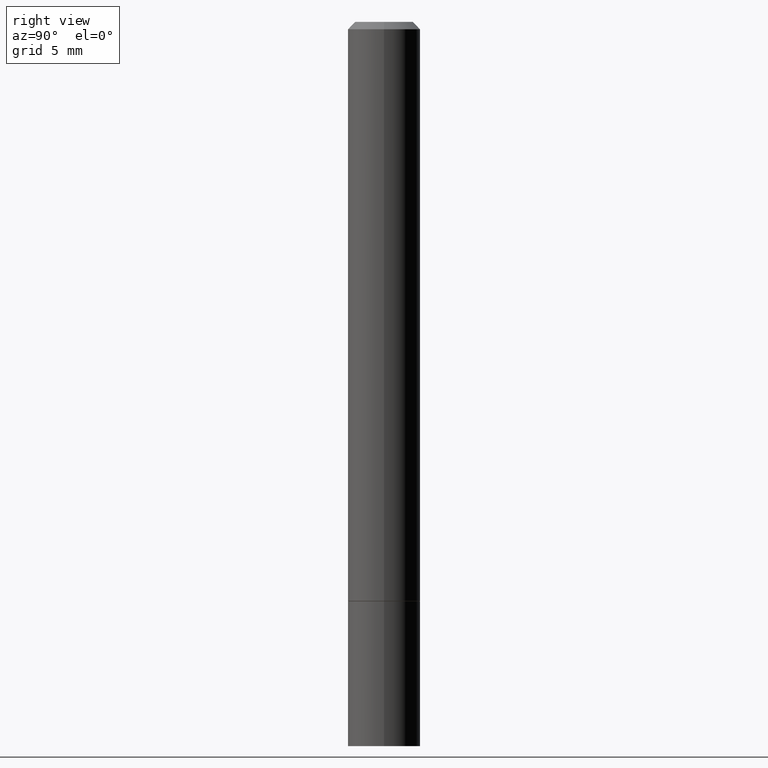
[diagram: clean part render]
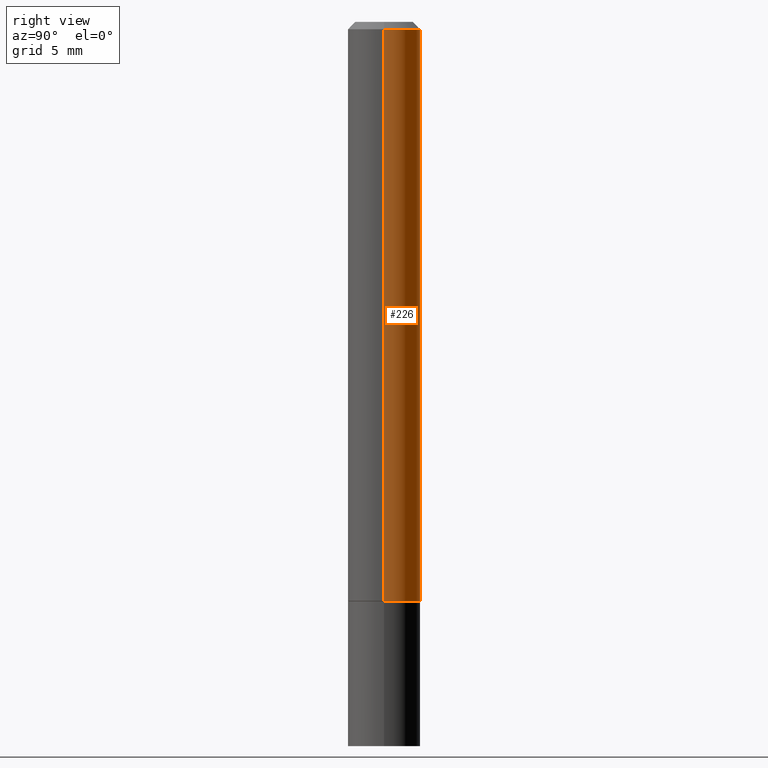
[diagram: same view with one face highlighted and labeled with its STEP entity id]
A machine part, right view. The second image highlights one B-rep face of the part: STEP entity #226.
In plain terms, the highlighted cylindrical surface (edge-blend (fillet) strip) has radius 2.5006 mm, axis along (-0, 0, 1).
Its self-contained STEP definition (entity closure, byte-faithful):
#7 = CARTESIAN_POINT ( 'NONE',  ( 0.09844999999999978768, -7.452456546574688288E-16, -0.02000000000000002123 ) ) ;
#30 = FACE_OUTER_BOUND ( 'NONE', #291, .T. ) ;
#32 = AXIS2_PLACEMENT_3D ( 'NONE', #59, #123, #67 ) ;
#34 = DIRECTION ( 'NONE',  ( -2.445468806185136877E-29, 3.491481338843145188E-15, 1.000000000000000000 ) ) ;
#41 = CIRCLE ( 'NONE', #78, 0.09844999999999978768 ) ;
#43 = DIRECTION ( 'NONE',  ( 1.000000000000000000, -6.982962677686266711E-15, 0.000000000000000000 ) ) ;
#54 = VERTEX_POINT ( 'NONE', #153 ) ;
#59 = CARTESIAN_POINT ( 'NONE',  ( 0.000000000000000000, 0.000000000000000000, 0.000000000000000000 ) ) ;
#66 = VECTOR ( 'NONE', #34, 39.37007874015748143 ) ;
#67 = DIRECTION ( 'NONE',  ( 1.000000000000000000, -6.982962677686266711E-15, 4.876176775795936353E-29 ) ) ;
#78 = AXIS2_PLACEMENT_3D ( 'NONE', #83, #303, #43 ) ;
#83 = CARTESIAN_POINT ( 'NONE',  ( 4.890937612370278413E-31, -6.982962677686297772E-17, -0.02000000000000002123 ) ) ;
#89 = ORIENTED_EDGE ( 'NONE', *, *, #152, .T. ) ;
#120 = LINE ( 'NONE', #208, #66 ) ;
#123 = DIRECTION ( 'NONE',  ( -2.445468806185136597E-29, 3.491481338843145583E-15, 1.000000000000000000 ) ) ;
#133 = CARTESIAN_POINT ( 'NONE',  ( 3.848678807174168313E-29, -5.494893331071342359E-15, -1.573800000000000088 ) ) ;
#152 = EDGE_CURVE ( 'NONE', #287, #193, #293, .T. ) ;
#153 = CARTESIAN_POINT ( 'NONE',  ( -0.09844999999999978768, 6.176430488413484730E-16, -0.02000000000000002123 ) ) ;
#158 = CARTESIAN_POINT ( 'NONE',  ( 0.09844999999999999585, -6.182366006689555708E-15, -1.573800000000000088 ) ) ;
#173 = ORIENTED_EDGE ( 'NONE', *, *, #315, .F. ) ;
#185 = ORIENTED_EDGE ( 'NONE', *, *, #254, .T. ) ;
#193 = VERTEX_POINT ( 'NONE', #347 ) ;
#200 = DIRECTION ( 'NONE',  ( -2.445468806185136877E-29, 3.491481338843145188E-15, 1.000000000000000000 ) ) ;
#203 = CYLINDRICAL_SURFACE ( 'NONE', #32, 0.09844999999999988483 ) ;
#204 = VERTEX_POINT ( 'NONE', #7 ) ;
#208 = CARTESIAN_POINT ( 'NONE',  ( -0.09844999999999988483, 6.995293233558178146E-16, -4.842691596355949137E-30 ) ) ;
#226 = ADVANCED_FACE ( 'NONE', ( #30 ), #203, .T. ) ;
#250 = VECTOR ( 'NONE', #200, 39.37007874015748143 ) ;
#252 = ORIENTED_EDGE ( 'NONE', *, *, #281, .F. ) ;
#254 = EDGE_CURVE ( 'NONE', #193, #54, #120, .T. ) ;
#272 = AXIS2_PLACEMENT_3D ( 'NONE', #133, #297, #350 ) ;
#273 = LINE ( 'NONE', #365, #250 ) ;
#281 = EDGE_CURVE ( 'NONE', #204, #54, #41, .T. ) ;
#287 = VERTEX_POINT ( 'NONE', #158 ) ;
#291 = EDGE_LOOP ( 'NONE', ( #89, #185, #252, #173 ) ) ;
#293 = CIRCLE ( 'NONE', #272, 0.09844999999999999585 ) ;
#297 = DIRECTION ( 'NONE',  ( -2.445468806185136597E-29, 3.491481338843145583E-15, 1.000000000000000000 ) ) ;
#303 = DIRECTION ( 'NONE',  ( -2.445468806185136597E-29, 3.491481338843145583E-15, 1.000000000000000000 ) ) ;
#315 = EDGE_CURVE ( 'NONE', #287, #204, #273, .T. ) ;
#347 = CARTESIAN_POINT ( 'NONE',  ( -0.09844999999999999585, -2.082832155568281168E-15, -1.573800000000000088 ) ) ;
#350 = DIRECTION ( 'NONE',  ( 1.000000000000000000, -6.982962677686265922E-15, 0.000000000000000000 ) ) ;
#365 = CARTESIAN_POINT ( 'NONE',  ( 0.09844999999999988483, -6.874726756182121656E-16, 4.800596035771093609E-30 ) ) ;